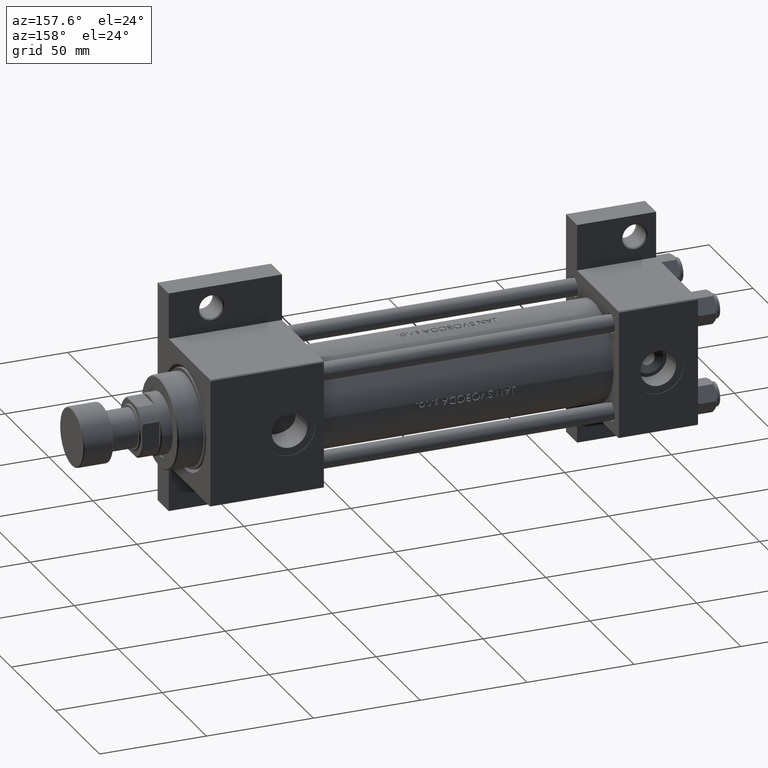
[diagram: clean part render]
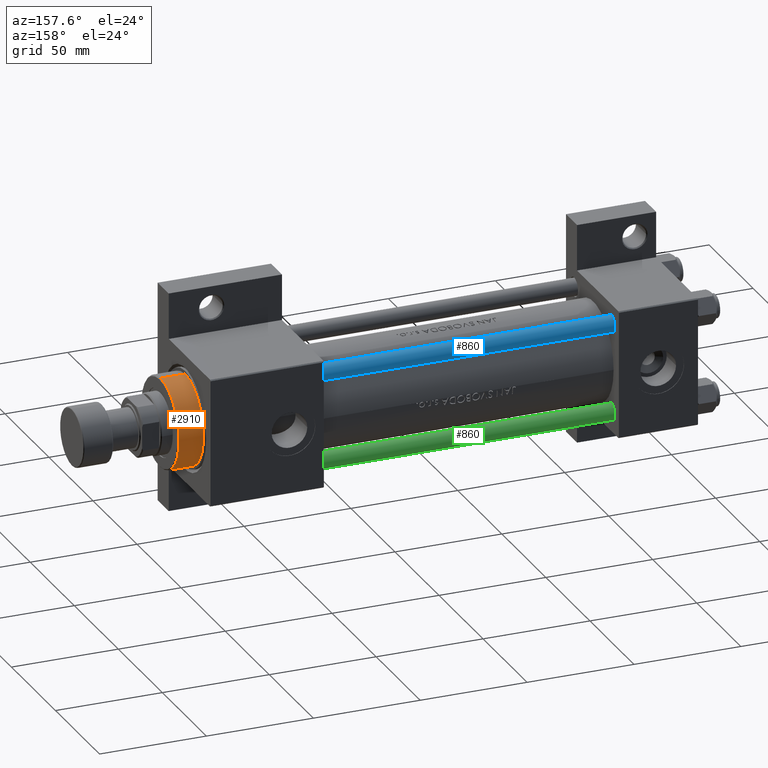
[diagram: same view with three faces highlighted in distinct colors, each labeled with its STEP entity id]
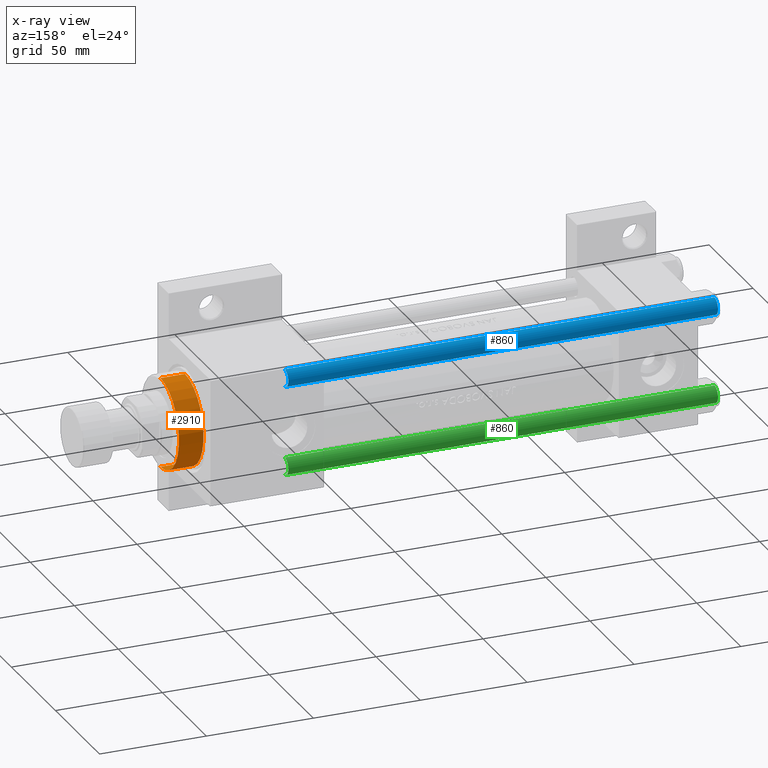
[diagram: x-ray of the same camera — body ghosted, the three highlighted faces saturated]
A machine part, auxiliary view with three faces highlighted in distinct colors.
The next image is the same camera in x-ray (body ghosted, the three faces saturated) — at least one of them is partly hidden behind the body in this view.
Their STEP definitions:

[orange] entity #2910 — the highlighted cylindrical surface (partial cylindrical patch) has radius 21 mm, axis along (-1, -0, 0).
#1366 = VECTOR ( 'NONE', #40853, 1000.000000000000000 ) ;
#2910 = ADVANCED_FACE ( 'NONE', ( #4351 ), #14315, .T. ) ;
#4351 = FACE_OUTER_BOUND ( 'NONE', #26398, .T. ) ;
#5330 = DIRECTION ( 'NONE',  ( 0.000000000000000000, 0.000000000000000000, 1.000000000000000000 ) ) ;
#8495 = CARTESIAN_POINT ( 'NONE',  ( 0.000000000000000000, 0.000000000000000000, 28.69999999999999929 ) ) ;
#9847 = ORIENTED_EDGE ( 'NONE', *, *, #12382, .F. ) ;
#11007 = EDGE_CURVE ( 'NONE', #20776, #17196, #31565, .T. ) ;
#11153 = DIRECTION ( 'NONE',  ( -1.000000000000000000, 0.000000000000000000, 0.000000000000000000 ) ) ;
#11875 = VERTEX_POINT ( 'NONE', #39482 ) ;
#12382 = EDGE_CURVE ( 'NONE', #20776, #11875, #47907, .T. ) ;
#13355 = CARTESIAN_POINT ( 'NONE',  ( 21.00000000000000000, 2.571758278209441661E-15, 40.19999999999998863 ) ) ;
#14315 = CYLINDRICAL_SURFACE ( 'NONE', #27540, 21.00000000000000000 ) ;
#14594 = CARTESIAN_POINT ( 'NONE',  ( -21.00000000000000000, 0.000000000000000000, 40.70000000000000284 ) ) ;
#15559 = LINE ( 'NONE', #41820, #22945 ) ;
#15795 = DIRECTION ( 'NONE',  ( -0.000000000000000000, -0.000000000000000000, -1.000000000000000000 ) ) ;
#17196 = VERTEX_POINT ( 'NONE', #13355 ) ;
#20776 = VERTEX_POINT ( 'NONE', #34253 ) ;
#21702 = VERTEX_POINT ( 'NONE', #27426 ) ;
#22945 = VECTOR ( 'NONE', #15795, 1000.000000000000000 ) ;
#23572 = DIRECTION ( 'NONE',  ( 1.000000000000000000, 0.000000000000000000, 0.000000000000000000 ) ) ;
#23683 = AXIS2_PLACEMENT_3D ( 'NONE', #8495, #5330, #23572 ) ;
#25463 = DIRECTION ( 'NONE',  ( 1.000000000000000000, 0.000000000000000000, 0.000000000000000000 ) ) ;
#25702 = DIRECTION ( 'NONE',  ( 0.000000000000000000, 0.000000000000000000, -1.000000000000000000 ) ) ;
#26177 = CARTESIAN_POINT ( 'NONE',  ( 0.000000000000000000, 0.000000000000000000, 40.19999999999998863 ) ) ;
#26398 = EDGE_LOOP ( 'NONE', ( #29013, #28103, #32983, #9847 ) ) ;
#26887 = EDGE_CURVE ( 'NONE', #17196, #21702, #15559, .T. ) ;
#27426 = CARTESIAN_POINT ( 'NONE',  ( 21.00000000000000000, 2.571758278209441661E-15, 28.69999999999999929 ) ) ;
#27540 = AXIS2_PLACEMENT_3D ( 'NONE', #36942, #33775, #11153 ) ;
#28103 = ORIENTED_EDGE ( 'NONE', *, *, #26887, .T. ) ;
#29013 = ORIENTED_EDGE ( 'NONE', *, *, #11007, .T. ) ;
#29402 = EDGE_CURVE ( 'NONE', #21702, #11875, #38438, .T. ) ;
#31565 = CIRCLE ( 'NONE', #37772, 21.00000000000000000 ) ;
#32983 = ORIENTED_EDGE ( 'NONE', *, *, #29402, .T. ) ;
#33775 = DIRECTION ( 'NONE',  ( -0.000000000000000000, -0.000000000000000000, -1.000000000000000000 ) ) ;
#34253 = CARTESIAN_POINT ( 'NONE',  ( -21.00000000000000000, 0.000000000000000000, 40.19999999999998863 ) ) ;
#36942 = CARTESIAN_POINT ( 'NONE',  ( 0.000000000000000000, 0.000000000000000000, 40.70000000000000284 ) ) ;
#37772 = AXIS2_PLACEMENT_3D ( 'NONE', #26177, #25702, #25463 ) ;
#38438 = CIRCLE ( 'NONE', #23683, 21.00000000000000000 ) ;
#39482 = CARTESIAN_POINT ( 'NONE',  ( -21.00000000000000000, 0.000000000000000000, 28.69999999999999929 ) ) ;
#40853 = DIRECTION ( 'NONE',  ( -0.000000000000000000, -0.000000000000000000, -1.000000000000000000 ) ) ;
#41820 = CARTESIAN_POINT ( 'NONE',  ( 21.00000000000000000, 2.571758278209441661E-15, 40.70000000000000284 ) ) ;
#47907 = LINE ( 'NONE', #14594, #1366 ) ;

[blue] entity #860 — the highlighted cylindrical surface (edge-blend (fillet) strip) has radius 4 mm, axis along (-1, -0, -0).
#95 = EDGE_CURVE ( 'NONE', #10308, #40565, #26661, .T. ) ;
#605 = VERTEX_POINT ( 'NONE', #12477 ) ;
#860 = ADVANCED_FACE ( 'NONE', ( #38378 ), #5065, .T. ) ;
#1667 = CARTESIAN_POINT ( 'NONE',  ( 0.000000000000000000, 0.000000000000000000, 202.0000000000000000 ) ) ;
#3901 = CIRCLE ( 'NONE', #13979, 4.000000000000000000 ) ;
#5065 = CYLINDRICAL_SURFACE ( 'NONE', #26704, 4.000000000000000000 ) ;
#5362 = VECTOR ( 'NONE', #20280, 1000.000000000000000 ) ;
#7141 = CARTESIAN_POINT ( 'NONE',  ( 4.000000000000000000, 4.898587196589412829E-16, 201.5000000000000000 ) ) ;
#10308 = VERTEX_POINT ( 'NONE', #23191 ) ;
#12477 = CARTESIAN_POINT ( 'NONE',  ( 4.000000000000000000, 4.898587196589412829E-16, 0.5000000000000004441 ) ) ;
#13979 = AXIS2_PLACEMENT_3D ( 'NONE', #47064, #25181, #40006 ) ;
#15685 = EDGE_CURVE ( 'NONE', #10308, #17854, #41680, .T. ) ;
#15707 = CARTESIAN_POINT ( 'NONE',  ( 0.000000000000000000, 0.000000000000000000, 201.5000000000000000 ) ) ;
#17854 = VERTEX_POINT ( 'NONE', #22550 ) ;
#20280 = DIRECTION ( 'NONE',  ( -0.000000000000000000, -0.000000000000000000, -1.000000000000000000 ) ) ;
#21248 = ORIENTED_EDGE ( 'NONE', *, *, #15685, .F. ) ;
#22487 = VECTOR ( 'NONE', #40239, 1000.000000000000000 ) ;
#22550 = CARTESIAN_POINT ( 'NONE',  ( -4.000000000000000000, 0.000000000000000000, 0.5000000000000004441 ) ) ;
#23191 = CARTESIAN_POINT ( 'NONE',  ( -4.000000000000000000, 0.000000000000000000, 201.5000000000000000 ) ) ;
#23534 = EDGE_LOOP ( 'NONE', ( #41467, #26811, #40080, #21248 ) ) ;
#25181 = DIRECTION ( 'NONE',  ( -0.000000000000000000, -0.000000000000000000, 1.000000000000000000 ) ) ;
#25410 = CARTESIAN_POINT ( 'NONE',  ( 4.000000000000000000, 4.898587196589412829E-16, 202.0000000000000000 ) ) ;
#26661 = CIRCLE ( 'NONE', #44506, 4.000000000000000000 ) ;
#26704 = AXIS2_PLACEMENT_3D ( 'NONE', #1667, #31081, #45914 ) ;
#26811 = ORIENTED_EDGE ( 'NONE', *, *, #41786, .T. ) ;
#31081 = DIRECTION ( 'NONE',  ( -0.000000000000000000, -0.000000000000000000, -1.000000000000000000 ) ) ;
#32695 = LINE ( 'NONE', #25410, #22487 ) ;
#33908 = CARTESIAN_POINT ( 'NONE',  ( -4.000000000000000000, 0.000000000000000000, 202.0000000000000000 ) ) ;
#38074 = DIRECTION ( 'NONE',  ( 1.000000000000000000, 0.000000000000000000, 0.000000000000000000 ) ) ;
#38378 = FACE_OUTER_BOUND ( 'NONE', #23534, .T. ) ;
#40006 = DIRECTION ( 'NONE',  ( 1.000000000000000000, 0.000000000000000000, 0.000000000000000000 ) ) ;
#40080 = ORIENTED_EDGE ( 'NONE', *, *, #43043, .T. ) ;
#40239 = DIRECTION ( 'NONE',  ( -0.000000000000000000, -0.000000000000000000, -1.000000000000000000 ) ) ;
#40565 = VERTEX_POINT ( 'NONE', #7141 ) ;
#41467 = ORIENTED_EDGE ( 'NONE', *, *, #95, .T. ) ;
#41680 = LINE ( 'NONE', #33908, #5362 ) ;
#41786 = EDGE_CURVE ( 'NONE', #40565, #605, #32695, .T. ) ;
#43043 = EDGE_CURVE ( 'NONE', #605, #17854, #3901, .T. ) ;
#44506 = AXIS2_PLACEMENT_3D ( 'NONE', #15707, #45848, #38074 ) ;
#45848 = DIRECTION ( 'NONE',  ( 0.000000000000000000, 0.000000000000000000, -1.000000000000000000 ) ) ;
#45914 = DIRECTION ( 'NONE',  ( -1.000000000000000000, 0.000000000000000000, 0.000000000000000000 ) ) ;
#47064 = CARTESIAN_POINT ( 'NONE',  ( 0.000000000000000000, 0.000000000000000000, 0.5000000000000004441 ) ) ;

[green] entity #860 — the highlighted cylindrical surface (edge-blend (fillet) strip) has radius 4 mm, axis along (1, -0, -0).
#95 = EDGE_CURVE ( 'NONE', #10308, #40565, #26661, .T. ) ;
#605 = VERTEX_POINT ( 'NONE', #12477 ) ;
#860 = ADVANCED_FACE ( 'NONE', ( #38378 ), #5065, .T. ) ;
#1667 = CARTESIAN_POINT ( 'NONE',  ( 0.000000000000000000, 0.000000000000000000, 202.0000000000000000 ) ) ;
#3901 = CIRCLE ( 'NONE', #13979, 4.000000000000000000 ) ;
#5065 = CYLINDRICAL_SURFACE ( 'NONE', #26704, 4.000000000000000000 ) ;
#5362 = VECTOR ( 'NONE', #20280, 1000.000000000000000 ) ;
#7141 = CARTESIAN_POINT ( 'NONE',  ( 4.000000000000000000, 4.898587196589412829E-16, 201.5000000000000000 ) ) ;
#10308 = VERTEX_POINT ( 'NONE', #23191 ) ;
#12477 = CARTESIAN_POINT ( 'NONE',  ( 4.000000000000000000, 4.898587196589412829E-16, 0.5000000000000004441 ) ) ;
#13979 = AXIS2_PLACEMENT_3D ( 'NONE', #47064, #25181, #40006 ) ;
#15685 = EDGE_CURVE ( 'NONE', #10308, #17854, #41680, .T. ) ;
#15707 = CARTESIAN_POINT ( 'NONE',  ( 0.000000000000000000, 0.000000000000000000, 201.5000000000000000 ) ) ;
#17854 = VERTEX_POINT ( 'NONE', #22550 ) ;
#20280 = DIRECTION ( 'NONE',  ( -0.000000000000000000, -0.000000000000000000, -1.000000000000000000 ) ) ;
#21248 = ORIENTED_EDGE ( 'NONE', *, *, #15685, .F. ) ;
#22487 = VECTOR ( 'NONE', #40239, 1000.000000000000000 ) ;
#22550 = CARTESIAN_POINT ( 'NONE',  ( -4.000000000000000000, 0.000000000000000000, 0.5000000000000004441 ) ) ;
#23191 = CARTESIAN_POINT ( 'NONE',  ( -4.000000000000000000, 0.000000000000000000, 201.5000000000000000 ) ) ;
#23534 = EDGE_LOOP ( 'NONE', ( #41467, #26811, #40080, #21248 ) ) ;
#25181 = DIRECTION ( 'NONE',  ( -0.000000000000000000, -0.000000000000000000, 1.000000000000000000 ) ) ;
#25410 = CARTESIAN_POINT ( 'NONE',  ( 4.000000000000000000, 4.898587196589412829E-16, 202.0000000000000000 ) ) ;
#26661 = CIRCLE ( 'NONE', #44506, 4.000000000000000000 ) ;
#26704 = AXIS2_PLACEMENT_3D ( 'NONE', #1667, #31081, #45914 ) ;
#26811 = ORIENTED_EDGE ( 'NONE', *, *, #41786, .T. ) ;
#31081 = DIRECTION ( 'NONE',  ( -0.000000000000000000, -0.000000000000000000, -1.000000000000000000 ) ) ;
#32695 = LINE ( 'NONE', #25410, #22487 ) ;
#33908 = CARTESIAN_POINT ( 'NONE',  ( -4.000000000000000000, 0.000000000000000000, 202.0000000000000000 ) ) ;
#38074 = DIRECTION ( 'NONE',  ( 1.000000000000000000, 0.000000000000000000, 0.000000000000000000 ) ) ;
#38378 = FACE_OUTER_BOUND ( 'NONE', #23534, .T. ) ;
#40006 = DIRECTION ( 'NONE',  ( 1.000000000000000000, 0.000000000000000000, 0.000000000000000000 ) ) ;
#40080 = ORIENTED_EDGE ( 'NONE', *, *, #43043, .T. ) ;
#40239 = DIRECTION ( 'NONE',  ( -0.000000000000000000, -0.000000000000000000, -1.000000000000000000 ) ) ;
#40565 = VERTEX_POINT ( 'NONE', #7141 ) ;
#41467 = ORIENTED_EDGE ( 'NONE', *, *, #95, .T. ) ;
#41680 = LINE ( 'NONE', #33908, #5362 ) ;
#41786 = EDGE_CURVE ( 'NONE', #40565, #605, #32695, .T. ) ;
#43043 = EDGE_CURVE ( 'NONE', #605, #17854, #3901, .T. ) ;
#44506 = AXIS2_PLACEMENT_3D ( 'NONE', #15707, #45848, #38074 ) ;
#45848 = DIRECTION ( 'NONE',  ( 0.000000000000000000, 0.000000000000000000, -1.000000000000000000 ) ) ;
#45914 = DIRECTION ( 'NONE',  ( -1.000000000000000000, 0.000000000000000000, 0.000000000000000000 ) ) ;
#47064 = CARTESIAN_POINT ( 'NONE',  ( 0.000000000000000000, 0.000000000000000000, 0.5000000000000004441 ) ) ;